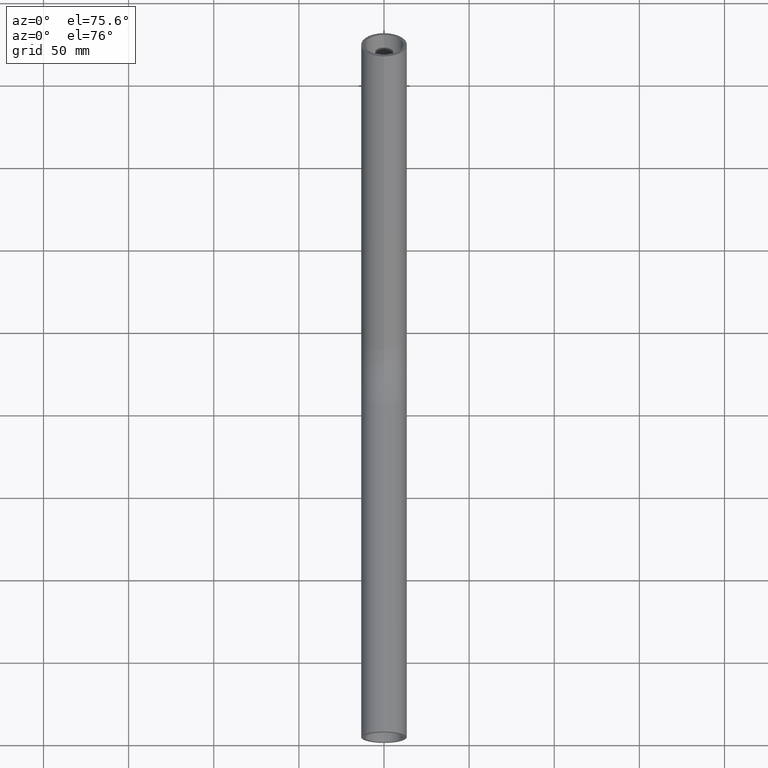
[diagram: clean part render]
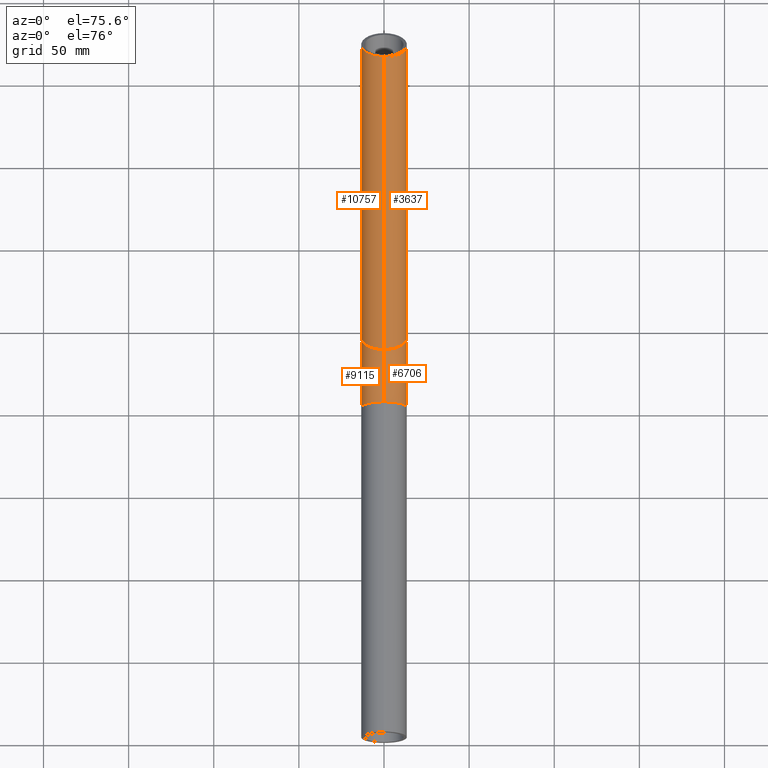
[diagram: same view with one multi-face feature highlighted, each face labeled with its STEP entity id]
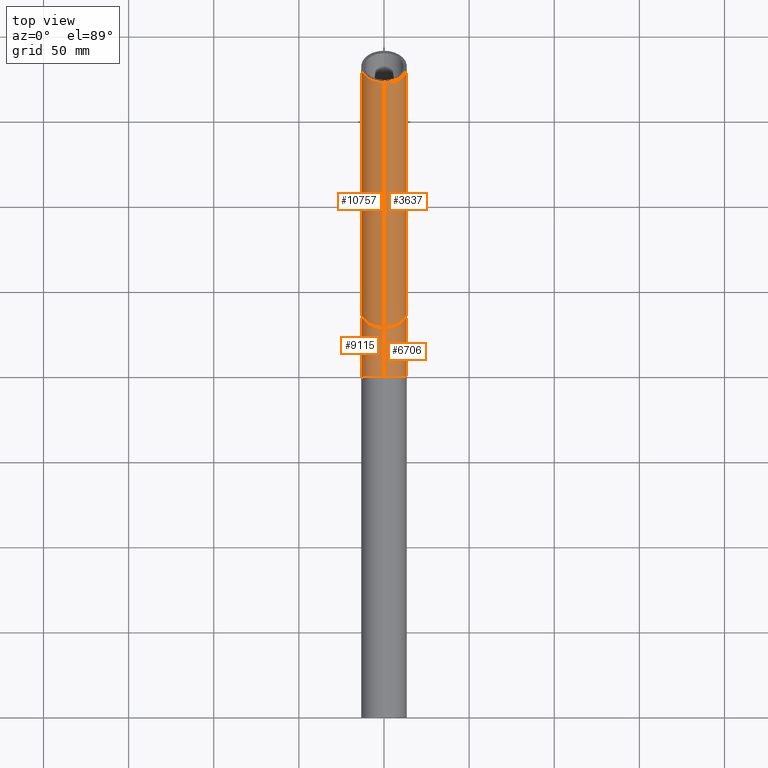
[diagram: same view with one multi-face feature highlighted, each face labeled with its STEP entity id]
A machine part, auxiliary view. The highlighted faces form ONE feature: a constant-radius fillet chain: 4 tangent blend faces with common blend radius 13.45 mm. The faces share edges in the B-rep.
A second angle (top view) of the same feature is appended — it is thin or edge-on in the first view.
Their STEP definitions:
[1] entity #9115 (Torus):
#11 = DIRECTION ( 'NONE',  ( 1.000000000000000000, 0.0000000000000000000, 0.0000000000000000000 ) ) ;
#571 = DIRECTION ( 'NONE',  ( 0.0000000000000000000, 0.0000000000000000000, -1.000000000000000000 ) ) ;
#613 = CARTESIAN_POINT ( 'NONE',  ( -1.647149944853190000E-015, 200.0000000000000000, 54.00000000000000000 ) ) ;
#617 = AXIS2_PLACEMENT_3D ( 'NONE', #9572, #10392, #1180 ) ;
#1180 = DIRECTION ( 'NONE',  ( 0.0000000000000000000, 0.0000000000000000000, 1.000000000000000000 ) ) ;
#1467 = CIRCLE ( 'NONE', #8500, 67.45000000000000300 ) ;
#2786 = CIRCLE ( 'NONE', #617, 13.44999999999999900 ) ;
#2978 = CARTESIAN_POINT ( 'NONE',  ( 1.647149944853190000E-015, 200.0000000000000000, 13.44999999999999900 ) ) ;
#3846 = CARTESIAN_POINT ( 'NONE',  ( 0.0000000000000000000, 200.0000000000000000, -13.44999999999999900 ) ) ;
#4111 = TOROIDAL_SURFACE ( 'NONE', #4383, 54.00000000000000000, 13.44999999999999900 ) ;
#4383 = AXIS2_PLACEMENT_3D ( 'NONE', #9305, #11, #10245 ) ;
#4485 = VERTEX_POINT ( 'NONE', #9645 ) ;
#5168 = FACE_OUTER_BOUND ( 'NONE', #8789, .T. ) ;
#5771 = DIRECTION ( 'NONE',  ( 1.000000000000000000, 0.0000000000000000000, 0.0000000000000000000 ) ) ;
#6066 = CIRCLE ( 'NONE', #8823, 13.44999999999999800 ) ;
#6210 = DIRECTION ( 'NONE',  ( 0.0000000000000000000, -0.7071067811865484600, 0.7071067811865465700 ) ) ;
#6319 = DIRECTION ( 'NONE',  ( 1.000000000000000000, 0.0000000000000000000, 0.0000000000000000000 ) ) ;
#6365 = CARTESIAN_POINT ( 'NONE',  ( 0.0000000000000000000, 200.0000000000000000, 54.00000000000000000 ) ) ;
#7065 = EDGE_CURVE ( 'NONE', #9819, #4485, #7534, .T. ) ;
#7070 = DIRECTION ( 'NONE',  ( 0.0000000000000000000, 0.7071067811865463500, 0.7071067811865486800 ) ) ;
#7452 = AXIS2_PLACEMENT_3D ( 'NONE', #613, #5771, #571 ) ;
#7534 = CIRCLE ( 'NONE', #7452, 40.55000000000000400 ) ;
#7626 = ORIENTED_EDGE ( 'NONE', *, *, #10777, .F. ) ;
#7875 = ORIENTED_EDGE ( 'NONE', *, *, #7065, .T. ) ;
#8500 = AXIS2_PLACEMENT_3D ( 'NONE', #6365, #6319, #9663 ) ;
#8664 = CARTESIAN_POINT ( 'NONE',  ( 0.0000000000000000000, 238.1837661840736500, 15.81623381592650500 ) ) ;
#8777 = EDGE_CURVE ( 'NONE', #10378, #9819, #2786, .T. ) ;
#8789 = EDGE_LOOP ( 'NONE', ( #8943, #10851, #7875, #7626 ) ) ;
#8823 = AXIS2_PLACEMENT_3D ( 'NONE', #8664, #7070, #6210 ) ;
#8943 = ORIENTED_EDGE ( 'NONE', *, *, #10924, .F. ) ;
#9115 = ADVANCED_FACE ( 'NONE', ( #5168 ), #4111, .T. ) ;
#9305 = CARTESIAN_POINT ( 'NONE',  ( 0.0000000000000000000, 200.0000000000000000, 54.00000000000000000 ) ) ;
#9443 = CARTESIAN_POINT ( 'NONE',  ( 1.647149944853190000E-015, 247.6943523910327100, 6.305647608967457400 ) ) ;
#9572 = CARTESIAN_POINT ( 'NONE',  ( 0.0000000000000000000, 200.0000000000000000, 0.0000000000000000000 ) ) ;
#9645 = CARTESIAN_POINT ( 'NONE',  ( 0.0000000000000000000, 228.6731799771145600, 25.32682002288555600 ) ) ;
#9663 = DIRECTION ( 'NONE',  ( 0.0000000000000000000, 0.0000000000000000000, -1.000000000000000000 ) ) ;
#9819 = VERTEX_POINT ( 'NONE', #2978 ) ;
#10101 = VERTEX_POINT ( 'NONE', #9443 ) ;
#10245 = DIRECTION ( 'NONE',  ( 0.0000000000000000000, 0.0000000000000000000, -1.000000000000000000 ) ) ;
#10378 = VERTEX_POINT ( 'NONE', #3846 ) ;
#10392 = DIRECTION ( 'NONE',  ( 0.0000000000000000000, 1.000000000000000000, 0.0000000000000000000 ) ) ;
#10777 = EDGE_CURVE ( 'NONE', #10101, #4485, #6066, .T. ) ;
#10851 = ORIENTED_EDGE ( 'NONE', *, *, #8777, .T. ) ;
#10924 = EDGE_CURVE ( 'NONE', #10378, #10101, #1467, .T. ) ;
[2] entity #10757 (Cylinder):
#273 = DIRECTION ( 'NONE',  ( 0.0000000000000000000, 0.7071067811865465700, 0.7071067811865485700 ) ) ;
#360 = CARTESIAN_POINT ( 'NONE',  ( 1.647149944853190000E-015, 389.1157086283420200, 147.7270038462771700 ) ) ;
#940 = EDGE_CURVE ( 'NONE', #7312, #10654, #2687, .T. ) ;
#1253 = EDGE_LOOP ( 'NONE', ( #10532, #4035, #2708, #7405 ) ) ;
#1708 = EDGE_CURVE ( 'NONE', #4485, #10654, #4763, .T. ) ;
#1872 = CARTESIAN_POINT ( 'NONE',  ( 0.0000000000000000000, 370.0945362144239000, 166.7481762601952900 ) ) ;
#2376 = FACE_OUTER_BOUND ( 'NONE', #1253, .T. ) ;
#2505 = VECTOR ( 'NONE', #2754, 1000.000000000000000 ) ;
#2682 = CARTESIAN_POINT ( 'NONE',  ( 0.0000000000000000000, 379.6051224213829300, 157.2375900532362300 ) ) ;
#2687 = CIRCLE ( 'NONE', #2989, 13.45000000000001900 ) ;
#2708 = ORIENTED_EDGE ( 'NONE', *, *, #1708, .T. ) ;
#2754 = DIRECTION ( 'NONE',  ( 0.0000000000000000000, 0.7071067811865465700, 0.7071067811865485700 ) ) ;
#2838 = CARTESIAN_POINT ( 'NONE',  ( 0.0000000000000000000, 228.6731799771145600, 25.32682002288555600 ) ) ;
#2989 = AXIS2_PLACEMENT_3D ( 'NONE', #2682, #8285, #6762 ) ;
#3329 = LINE ( 'NONE', #10164, #10816 ) ;
#4035 = ORIENTED_EDGE ( 'NONE', *, *, #10777, .T. ) ;
#4485 = VERTEX_POINT ( 'NONE', #9645 ) ;
#4763 = LINE ( 'NONE', #2838, #2505 ) ;
#5336 = EDGE_CURVE ( 'NONE', #10101, #7312, #3329, .T. ) ;
#5402 = DIRECTION ( 'NONE',  ( 0.0000000000000000000, 0.7071067811865465700, 0.7071067811865485700 ) ) ;
#5421 = CYLINDRICAL_SURFACE ( 'NONE', #7102, 13.44999999999999900 ) ;
#6066 = CIRCLE ( 'NONE', #8823, 13.44999999999999800 ) ;
#6210 = DIRECTION ( 'NONE',  ( 0.0000000000000000000, -0.7071067811865484600, 0.7071067811865465700 ) ) ;
#6762 = DIRECTION ( 'NONE',  ( 0.0000000000000000000, -0.7071067811865494600, 0.7071067811865453500 ) ) ;
#7070 = DIRECTION ( 'NONE',  ( 0.0000000000000000000, 0.7071067811865463500, 0.7071067811865486800 ) ) ;
#7102 = AXIS2_PLACEMENT_3D ( 'NONE', #7860, #5402, #8798 ) ;
#7312 = VERTEX_POINT ( 'NONE', #360 ) ;
#7405 = ORIENTED_EDGE ( 'NONE', *, *, #940, .F. ) ;
#7860 = CARTESIAN_POINT ( 'NONE',  ( 0.0000000000000000000, 238.1837661840736500, 15.81623381592650500 ) ) ;
#8285 = DIRECTION ( 'NONE',  ( 0.0000000000000000000, 0.7071067811865463500, 0.7071067811865486800 ) ) ;
#8664 = CARTESIAN_POINT ( 'NONE',  ( 0.0000000000000000000, 238.1837661840736500, 15.81623381592650500 ) ) ;
#8798 = DIRECTION ( 'NONE',  ( 0.0000000000000000000, -0.7071067811865484600, 0.7071067811865466800 ) ) ;
#8823 = AXIS2_PLACEMENT_3D ( 'NONE', #8664, #7070, #6210 ) ;
#9443 = CARTESIAN_POINT ( 'NONE',  ( 1.647149944853190000E-015, 247.6943523910327100, 6.305647608967457400 ) ) ;
#9645 = CARTESIAN_POINT ( 'NONE',  ( 0.0000000000000000000, 228.6731799771145600, 25.32682002288555600 ) ) ;
#10101 = VERTEX_POINT ( 'NONE', #9443 ) ;
#10164 = CARTESIAN_POINT ( 'NONE',  ( 1.647149944853190000E-015, 247.6943523910327100, 6.305647608967453800 ) ) ;
#10532 = ORIENTED_EDGE ( 'NONE', *, *, #5336, .F. ) ;
#10654 = VERTEX_POINT ( 'NONE', #1872 ) ;
#10757 = ADVANCED_FACE ( 'NONE', ( #2376 ), #5421, .T. ) ;
#10777 = EDGE_CURVE ( 'NONE', #10101, #4485, #6066, .T. ) ;
#10816 = VECTOR ( 'NONE', #273, 1000.000000000000000 ) ;
[3] entity #3637 (Cylinder):
#5 = ORIENTED_EDGE ( 'NONE', *, *, #5336, .T. ) ;
#273 = DIRECTION ( 'NONE',  ( 0.0000000000000000000, 0.7071067811865465700, 0.7071067811865485700 ) ) ;
#360 = CARTESIAN_POINT ( 'NONE',  ( 1.647149944853190000E-015, 389.1157086283420200, 147.7270038462771700 ) ) ;
#371 = AXIS2_PLACEMENT_3D ( 'NONE', #10037, #5099, #9335 ) ;
#754 = EDGE_LOOP ( 'NONE', ( #2044, #5, #5448, #10519 ) ) ;
#1371 = CARTESIAN_POINT ( 'NONE',  ( 0.0000000000000000000, 379.6051224213829300, 157.2375900532362300 ) ) ;
#1708 = EDGE_CURVE ( 'NONE', #4485, #10654, #4763, .T. ) ;
#1872 = CARTESIAN_POINT ( 'NONE',  ( 0.0000000000000000000, 370.0945362144239000, 166.7481762601952900 ) ) ;
#2044 = ORIENTED_EDGE ( 'NONE', *, *, #9206, .T. ) ;
#2505 = VECTOR ( 'NONE', #2754, 1000.000000000000000 ) ;
#2754 = DIRECTION ( 'NONE',  ( 0.0000000000000000000, 0.7071067811865465700, 0.7071067811865485700 ) ) ;
#2838 = CARTESIAN_POINT ( 'NONE',  ( 0.0000000000000000000, 228.6731799771145600, 25.32682002288555600 ) ) ;
#2848 = CARTESIAN_POINT ( 'NONE',  ( 0.0000000000000000000, 238.1837661840736500, 15.81623381592650500 ) ) ;
#3329 = LINE ( 'NONE', #10164, #10816 ) ;
#3476 = CIRCLE ( 'NONE', #9638, 13.45000000000001900 ) ;
#3530 = EDGE_CURVE ( 'NONE', #10654, #7312, #3476, .T. ) ;
#3637 = ADVANCED_FACE ( 'NONE', ( #10058 ), #7031, .T. ) ;
#4485 = VERTEX_POINT ( 'NONE', #9645 ) ;
#4763 = LINE ( 'NONE', #2838, #2505 ) ;
#5099 = DIRECTION ( 'NONE',  ( 0.0000000000000000000, 0.7071067811865465700, 0.7071067811865485700 ) ) ;
#5336 = EDGE_CURVE ( 'NONE', #10101, #7312, #3329, .T. ) ;
#5448 = ORIENTED_EDGE ( 'NONE', *, *, #3530, .F. ) ;
#6271 = DIRECTION ( 'NONE',  ( 0.0000000000000000000, -0.7071067811865494600, 0.7071067811865453500 ) ) ;
#7031 = CYLINDRICAL_SURFACE ( 'NONE', #371, 13.44999999999999900 ) ;
#7128 = DIRECTION ( 'NONE',  ( 0.0000000000000000000, -0.7071067811865484600, 0.7071067811865465700 ) ) ;
#7312 = VERTEX_POINT ( 'NONE', #360 ) ;
#7621 = AXIS2_PLACEMENT_3D ( 'NONE', #2848, #8751, #7128 ) ;
#8751 = DIRECTION ( 'NONE',  ( 0.0000000000000000000, 0.7071067811865463500, 0.7071067811865486800 ) ) ;
#9206 = EDGE_CURVE ( 'NONE', #4485, #10101, #9633, .T. ) ;
#9335 = DIRECTION ( 'NONE',  ( 0.0000000000000000000, -0.7071067811865484600, 0.7071067811865466800 ) ) ;
#9443 = CARTESIAN_POINT ( 'NONE',  ( 1.647149944853190000E-015, 247.6943523910327100, 6.305647608967457400 ) ) ;
#9633 = CIRCLE ( 'NONE', #7621, 13.44999999999999800 ) ;
#9638 = AXIS2_PLACEMENT_3D ( 'NONE', #1371, #10611, #6271 ) ;
#9645 = CARTESIAN_POINT ( 'NONE',  ( 0.0000000000000000000, 228.6731799771145600, 25.32682002288555600 ) ) ;
#10037 = CARTESIAN_POINT ( 'NONE',  ( 0.0000000000000000000, 238.1837661840736500, 15.81623381592650500 ) ) ;
#10058 = FACE_OUTER_BOUND ( 'NONE', #754, .T. ) ;
#10101 = VERTEX_POINT ( 'NONE', #9443 ) ;
#10164 = CARTESIAN_POINT ( 'NONE',  ( 1.647149944853190000E-015, 247.6943523910327100, 6.305647608967453800 ) ) ;
#10519 = ORIENTED_EDGE ( 'NONE', *, *, #1708, .F. ) ;
#10611 = DIRECTION ( 'NONE',  ( 0.0000000000000000000, 0.7071067811865463500, 0.7071067811865486800 ) ) ;
#10654 = VERTEX_POINT ( 'NONE', #1872 ) ;
#10816 = VECTOR ( 'NONE', #273, 1000.000000000000000 ) ;
[4] entity #6706 (Torus):
#571 = DIRECTION ( 'NONE',  ( 0.0000000000000000000, 0.0000000000000000000, -1.000000000000000000 ) ) ;
#613 = CARTESIAN_POINT ( 'NONE',  ( -1.647149944853190000E-015, 200.0000000000000000, 54.00000000000000000 ) ) ;
#690 = CARTESIAN_POINT ( 'NONE',  ( 0.0000000000000000000, 200.0000000000000000, 0.0000000000000000000 ) ) ;
#963 = ORIENTED_EDGE ( 'NONE', *, *, #7065, .F. ) ;
#1399 = DIRECTION ( 'NONE',  ( 0.0000000000000000000, 0.0000000000000000000, 1.000000000000000000 ) ) ;
#1467 = CIRCLE ( 'NONE', #8500, 67.45000000000000300 ) ;
#2643 = CARTESIAN_POINT ( 'NONE',  ( 0.0000000000000000000, 200.0000000000000000, 54.00000000000000000 ) ) ;
#2848 = CARTESIAN_POINT ( 'NONE',  ( 0.0000000000000000000, 238.1837661840736500, 15.81623381592650500 ) ) ;
#2978 = CARTESIAN_POINT ( 'NONE',  ( 1.647149944853190000E-015, 200.0000000000000000, 13.44999999999999900 ) ) ;
#3846 = CARTESIAN_POINT ( 'NONE',  ( 0.0000000000000000000, 200.0000000000000000, -13.44999999999999900 ) ) ;
#3973 = TOROIDAL_SURFACE ( 'NONE', #5614, 54.00000000000000000, 13.44999999999999900 ) ;
#4075 = DIRECTION ( 'NONE',  ( 0.0000000000000000000, 1.000000000000000000, 0.0000000000000000000 ) ) ;
#4485 = VERTEX_POINT ( 'NONE', #9645 ) ;
#4940 = ORIENTED_EDGE ( 'NONE', *, *, #10924, .T. ) ;
#5044 = CIRCLE ( 'NONE', #6241, 13.44999999999999900 ) ;
#5258 = DIRECTION ( 'NONE',  ( 1.000000000000000000, 0.0000000000000000000, 0.0000000000000000000 ) ) ;
#5290 = ORIENTED_EDGE ( 'NONE', *, *, #6509, .T. ) ;
#5614 = AXIS2_PLACEMENT_3D ( 'NONE', #2643, #5258, #9407 ) ;
#5771 = DIRECTION ( 'NONE',  ( 1.000000000000000000, 0.0000000000000000000, 0.0000000000000000000 ) ) ;
#6179 = EDGE_LOOP ( 'NONE', ( #5290, #4940, #8150, #963 ) ) ;
#6241 = AXIS2_PLACEMENT_3D ( 'NONE', #690, #4075, #1399 ) ;
#6319 = DIRECTION ( 'NONE',  ( 1.000000000000000000, 0.0000000000000000000, 0.0000000000000000000 ) ) ;
#6365 = CARTESIAN_POINT ( 'NONE',  ( 0.0000000000000000000, 200.0000000000000000, 54.00000000000000000 ) ) ;
#6509 = EDGE_CURVE ( 'NONE', #9819, #10378, #5044, .T. ) ;
#6706 = ADVANCED_FACE ( 'NONE', ( #8203 ), #3973, .T. ) ;
#7065 = EDGE_CURVE ( 'NONE', #9819, #4485, #7534, .T. ) ;
#7128 = DIRECTION ( 'NONE',  ( 0.0000000000000000000, -0.7071067811865484600, 0.7071067811865465700 ) ) ;
#7452 = AXIS2_PLACEMENT_3D ( 'NONE', #613, #5771, #571 ) ;
#7534 = CIRCLE ( 'NONE', #7452, 40.55000000000000400 ) ;
#7621 = AXIS2_PLACEMENT_3D ( 'NONE', #2848, #8751, #7128 ) ;
#8150 = ORIENTED_EDGE ( 'NONE', *, *, #9206, .F. ) ;
#8203 = FACE_OUTER_BOUND ( 'NONE', #6179, .T. ) ;
#8500 = AXIS2_PLACEMENT_3D ( 'NONE', #6365, #6319, #9663 ) ;
#8751 = DIRECTION ( 'NONE',  ( 0.0000000000000000000, 0.7071067811865463500, 0.7071067811865486800 ) ) ;
#9206 = EDGE_CURVE ( 'NONE', #4485, #10101, #9633, .T. ) ;
#9407 = DIRECTION ( 'NONE',  ( 0.0000000000000000000, 0.0000000000000000000, -1.000000000000000000 ) ) ;
#9443 = CARTESIAN_POINT ( 'NONE',  ( 1.647149944853190000E-015, 247.6943523910327100, 6.305647608967457400 ) ) ;
#9633 = CIRCLE ( 'NONE', #7621, 13.44999999999999800 ) ;
#9645 = CARTESIAN_POINT ( 'NONE',  ( 0.0000000000000000000, 228.6731799771145600, 25.32682002288555600 ) ) ;
#9663 = DIRECTION ( 'NONE',  ( 0.0000000000000000000, 0.0000000000000000000, -1.000000000000000000 ) ) ;
#9819 = VERTEX_POINT ( 'NONE', #2978 ) ;
#10101 = VERTEX_POINT ( 'NONE', #9443 ) ;
#10378 = VERTEX_POINT ( 'NONE', #3846 ) ;
#10924 = EDGE_CURVE ( 'NONE', #10378, #10101, #1467, .T. ) ;